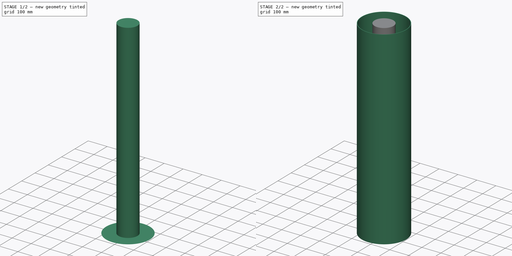
[diagram: build sequence overview — one tinted view per stage of 2, left to right]
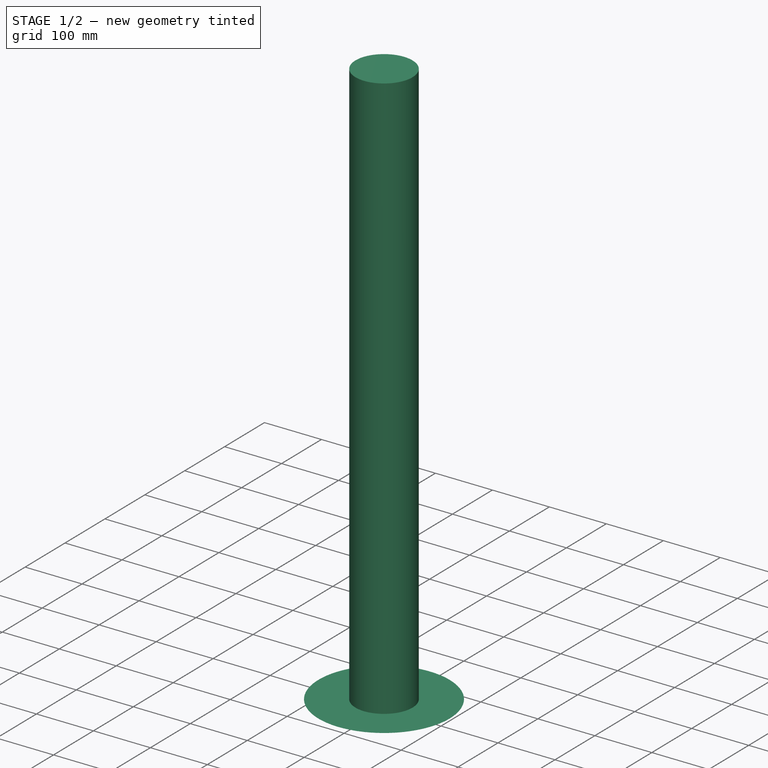
[diagram: stage 1 of 2 — iso view after this stage's code; geometry added in this stage tinted green]
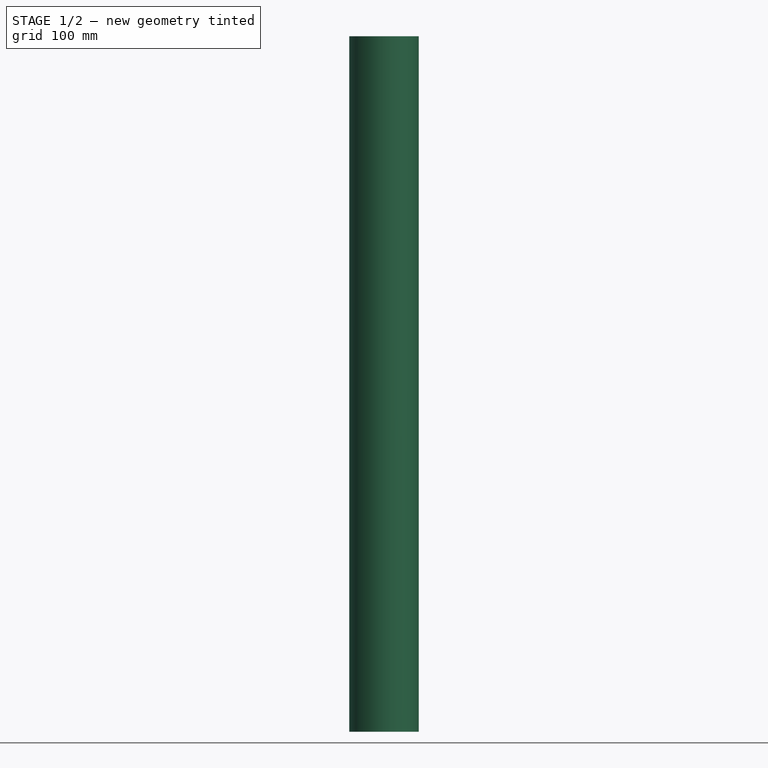
[diagram: stage 1 of 2 — front view after this stage's code; geometry added in this stage tinted green]
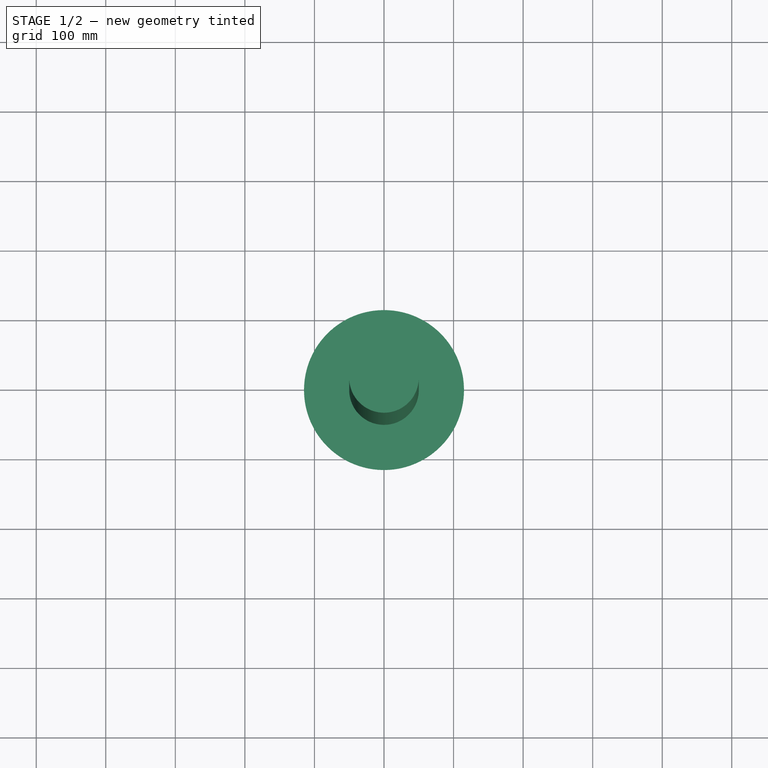
[diagram: stage 1 of 2 — top view after this stage's code; geometry added in this stage tinted green]
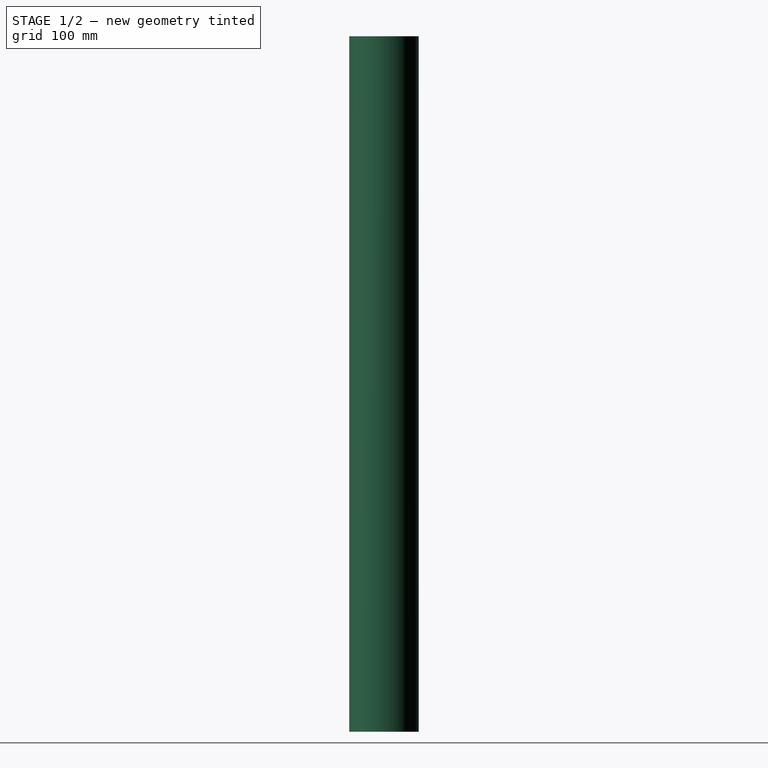
[diagram: stage 1 of 2 — right view after this stage's code; geometry added in this stage tinted green]
FCSTD DOCUMENT  (FreeCAD 0.18R16131 (Git))
Label: coax_1
License: All rights reserved
LicenseURL: http://en.wikipedia.org/wiki/All_rights_reserved
objects: Sketcher::SketchObject×13, Part::Extrusion×13
note: 26 computed .brp shape members not serialized (recipe doc carries the construction recipe); baked Part::Feature solids carry a one-line shape summary decoded from their .brp

FEATURE [Part::Extrusion] Extrude001  label="antenna"
  Base = -> Sketch001
  Dir = (0,0,1)
  DirMode = 2
  FaceMakerClass = Part::FaceMakerBullseye
  LengthFwd = 1000
  LengthRev = 0
  Solid = true
  Symmetric = false
FEATURE [Sketcher::SketchObject] Sketch002  label="sketch_excitationPort1"
  sketch-geometry (2):
    g0: Circle CenterX=0 CenterY=0 CenterZ=0 NormalX=0 NormalY=0 NormalZ=1 AngleXU=0 Radius=50
    g1: Circle CenterX=0 CenterY=0 CenterZ=0 NormalX=0 NormalY=0 NormalZ=1 AngleXU=0 Radius=115
  constraints (4):
    c: Coincident(g0,g-1)
    c: Coincident(g1,g0)
    c: Diameter(g0) = 100
    c: Diameter(g1) = 230
FEATURE [Part::Extrusion] Extrude002  label="excitationCoax"
  Base = -> Sketch002
  Dir = (0,0,1)
  DirMode = 2
  FaceMakerClass = Part::FaceMakerBullseye
  LengthFwd = 0.035
  LengthRev = 0
  Reversed = true
  Solid = true
  Symmetric = false
FEATURE [Sketcher::SketchObject] Sketch003  label="sketch_i1_A"
  Placement = pos=(0,0,247.5) rot=(0,0,1;0rad)
  sketch-geometry (7):
    g0: LineSegment StartX=-56.5 StartY=56.5 StartZ=0 EndX=56.5 EndY=56.5 EndZ=0
    g1: LineSegment StartX=56.5 StartY=56.5 StartZ=0 EndX=56.5 EndY=-56.5 EndZ=0
    g2: LineSegment StartX=56.5 StartY=-56.5 StartZ=0 EndX=-56.5 EndY=-56.5 EndZ=0
    g3: LineSegment StartX=-56.5 StartY=-56.5 StartZ=0 EndX=-56.5 EndY=56.5 EndZ=0
    g4: LineSegment StartX=-56.5 StartY=-56.5 StartZ=0 EndX=56.5 EndY=56.5 EndZ=0
    g5: LineSegment StartX=-56.5 StartY=56.5 StartZ=0 EndX=56.5 EndY=-56.5 EndZ=0
    g6: GeomPoint X=0 Y=0 Z=0
  constraints (17):
    c: Coincident(g0,g1)
    c: Coincident(g1,g2)
    c: Coincident(g2,g3)
    c: Coincident(g3,g0)
    c: Horizontal(g0)
    c: Horizontal(g2)
    c: Vertical(g1)
    c: Vertical(g3)
    c: Distance(g0) = 113
    c: Distance(g1) = 113
    c: Coincident(g4,g2)
    c: Coincident(g4,g0)
    c: Coincident(g5,g0)
    c: Coincident(g5,g1)
    c: PointOnObject(g6,g4)
    c: Coincident(g6,g-1)
    c: PointOnObject(g6,g5)
FEATURE [Sketcher::SketchObject] Sketch004  label="sketch_i1_B"
  Placement = pos=(0,0,252.5) rot=(0,0,1;0rad)
  sketch-geometry (7):
    g0: LineSegment StartX=-56.5 StartY=56.5 StartZ=0 EndX=56.5 EndY=56.5 EndZ=0
    g1: LineSegment StartX=56.5 StartY=56.5 StartZ=0 EndX=56.5 EndY=-56.5 EndZ=0
    g2: LineSegment StartX=56.5 StartY=-56.5 StartZ=0 EndX=-56.5 EndY=-56.5 EndZ=0
    g3: LineSegment StartX=-56.5 StartY=-56.5 StartZ=0 EndX=-56.5 EndY=56.5 EndZ=0
    g4: LineSegment StartX=-56.5 StartY=-56.5 StartZ=0 EndX=56.5 EndY=56.5 EndZ=0
    g5: LineSegment StartX=-56.5 StartY=56.5 StartZ=0 EndX=56.5 EndY=-56.5 EndZ=0
    g6: GeomPoint X=0 Y=0 Z=0
  constraints (17):
    c: Coincident(g0,g1)
    c: Coincident(g1,g2)
    c: Coincident(g2,g3)
    c: Coincident(g3,g0)
    c: Horizontal(g0)
    c: Horizontal(g2)
    c: Vertical(g1)
    c: Vertical(g3)
    c: Distance(g0) = 113
    c: Distance(g1) = 113
    c: Coincident(g4,g2)
    c: Coincident(g4,g0)
    c: Coincident(g5,g0)
    c: Coincident(g5,g1)
    c: PointOnObject(g6,g4)
    c: Coincident(g6,g-1)
    c: PointOnObject(g6,g5)
FEATURE [Sketcher::SketchObject] Sketch005  label="sketch_i2_B"
  Placement = pos=(0,0,752.5) rot=(0,0,1;0rad)
  sketch-geometry (7):
    g0: LineSegment StartX=-56.5 StartY=56.5 StartZ=0 EndX=56.5 EndY=56.5 EndZ=0
    g1: LineSegment StartX=56.5 StartY=56.5 StartZ=0 EndX=56.5 EndY=-56.5 EndZ=0
    g2: LineSegment StartX=56.5 StartY=-56.5 StartZ=0 EndX=-56.5 EndY=-56.5 EndZ=0
    g3: LineSegment StartX=-56.5 StartY=-56.5 StartZ=0 EndX=-56.5 EndY=56.5 EndZ=0
    g4: LineSegment StartX=-56.5 StartY=-56.5 StartZ=0 EndX=56.5 EndY=56.5 EndZ=0
    g5: LineSegment StartX=-56.5 StartY=56.5 StartZ=0 EndX=56.5 EndY=-56.5 EndZ=0
    g6: GeomPoint X=0 Y=0 Z=0
  constraints (17):
    c: Coincident(g0,g1)
    c: Coincident(g1,g2)
    c: Coincident(g2,g3)
    c: Coincident(g3,g0)
    c: Horizontal(g0)
    c: Horizontal(g2)
    c: Vertical(g1)
    c: Vertical(g3)
    c: Distance(g0) = 113
    c: Distance(g1) = 113
    c: Coincident(g4,g2)
    c: Coincident(g4,g0)
    c: Coincident(g5,g0)
    c: Coincident(g5,g1)
    c: PointOnObject(g6,g4)
    c: Coincident(g6,g-1)
    c: PointOnObject(g6,g5)
FEATURE [Sketcher::SketchObject] Sketch006  label="sketch_i2_A"
  Placement = pos=(0,0,747.5) rot=(0,0,1;0rad)
  sketch-geometry (7):
    g0: LineSegment StartX=-56.5 StartY=56.5 StartZ=0 EndX=56.5 EndY=56.5 EndZ=0
    g1: LineSegment StartX=56.5 StartY=56.5 StartZ=0 EndX=56.5 EndY=-56.5 EndZ=0
    g2: LineSegment StartX=56.5 StartY=-56.5 StartZ=0 EndX=-56.5 EndY=-56.5 EndZ=0
    g3: LineSegment StartX=-56.5 StartY=-56.5 StartZ=0 EndX=-56.5 EndY=56.5 EndZ=0
    g4: LineSegment StartX=-56.5 StartY=-56.5 StartZ=0 EndX=56.5 EndY=56.5 EndZ=0
    g5: LineSegment StartX=-56.5 StartY=56.5 StartZ=0 EndX=56.5 EndY=-56.5 EndZ=0
    g6: GeomPoint X=0 Y=0 Z=0
  constraints (17):
    c: Coincident(g0,g1)
    c: Coincident(g1,g2)
    c: Coincident(g2,g3)
    c: Coincident(g3,g0)
    c: Horizontal(g0)
    c: Horizontal(g2)
    c: Vertical(g1)
    c: Vertical(g3)
    c: Distance(g0) = 113
    c: Distance(g1) = 113
    c: Coincident(g4,g2)
    c: Coincident(g4,g0)
    c: Coincident(g5,g0)
    c: Coincident(g5,g1)
    c: PointOnObject(g6,g4)
    c: Coincident(g6,g-1)
    c: PointOnObject(g6,g5)
FEATURE [Part::Extrusion] Extrude003  label="currentProbe_i1_A"
  Base = -> Sketch003
  Dir = (0,0,1)
  DirMode = 2
  FaceMakerClass = Part::FaceMakerBullseye
  LengthFwd = 0
  LengthRev = 0
  Solid = false
  Symmetric = false
FEATURE [Part::Extrusion] Extrude004  label="currentProbe_i1_B"
  Base = -> Sketch004
  Dir = (0,0,1)
  DirMode = 2
  FaceMakerClass = Part::FaceMakerBullseye
  LengthFwd = 0
  LengthRev = 0
  Solid = false
  Symmetric = false
FEATURE [Part::Extrusion] Extrude005  label="currentProbe_i2_A"
  Base = -> Sketch006
  Dir = (0,0,1)
  DirMode = 2
  FaceMakerClass = Part::FaceMakerBullseye
  LengthFwd = 0
  LengthRev = 0
  Solid = false
  Symmetric = false
FEATURE [Part::Extrusion] Extrude006  label="currentProbe_i2_B"
  Base = -> Sketch005
  Dir = (0,0,1)
  DirMode = 2
  FaceMakerClass = Part::FaceMakerBullseye
  LengthFwd = 0
  LengthRev = 0
  Solid = false
  Symmetric = false
FEATURE [Sketcher::SketchObject] Sketch007  label="sketch_u2_A"
  Placement = pos=(0,0,747.7) rot=(0,0,1;0rad)
  sketch-geometry (1):
    g0: LineSegment StartX=50 StartY=0 StartZ=0 EndX=115 EndY=0 EndZ=0
  constraints (4):
    c: PointOnObject(g0,g-1)
    c: PointOnObject(g0,g-1)
    c: Distance(g-1,g0) = 50
    c: Distance(g-1,g0) = 115
FEATURE [Sketcher::SketchObject] Sketch008  label="sketch_u2_B"
  Placement = pos=(0,0,750) rot=(0,0,1;0rad)
  sketch-geometry (1):
    g0: LineSegment StartX=50 StartY=0 StartZ=0 EndX=115 EndY=0 EndZ=0
  constraints (4):
    c: PointOnObject(g0,g-1)
    c: PointOnObject(g0,g-1)
    c: Distance(g-1,g0) = 50
    c: Distance(g-1,g0) = 115
FEATURE [Sketcher::SketchObject] Sketch009  label="sketch_u2_C"
  Placement = pos=(0,0,752.5) rot=(0,0,1;0rad)
  sketch-geometry (1):
    g0: LineSegment StartX=50 StartY=0 StartZ=0 EndX=115 EndY=0 EndZ=0
  constraints (4):
    c: PointOnObject(g0,g-1)
    c: PointOnObject(g0,g-1)
    c: Distance(g-1,g0) = 50
    c: Distance(g-1,g0) = 115
FEATURE [Part::Extrusion] Extrude010  label="voltageProbe_u2_A"
  Base = -> Sketch007
  Dir = (0,0,1)
  DirMode = 2
  FaceMakerClass = Part::FaceMakerBullseye
  LengthFwd = 0
  LengthRev = 0
  Solid = false
  Symmetric = false
FEATURE [Part::Extrusion] Extrude011  label="voltageProbe_u2_C"
  Base = -> Sketch009
  Dir = (0,0,1)
  DirMode = 2
  FaceMakerClass = Part::FaceMakerBullseye
  LengthFwd = 0
  LengthRev = 0
  Solid = false
  Symmetric = false
FEATURE [Part::Extrusion] Extrude012  label="voltageProbe_u2_B"
  Base = -> Sketch008
  Dir = (0,0,1)
  DirMode = 2
  FaceMakerClass = Part::FaceMakerBullseye
  LengthFwd = 0
  LengthRev = 0
  Solid = false
  Symmetric = false
FEATURE [Sketcher::SketchObject] Sketch010  label="sketch_u1_A"
  Placement = pos=(0,0,247.5) rot=(0,0,1;0rad)
  sketch-geometry (1):
    g0: LineSegment StartX=50 StartY=0 StartZ=0 EndX=115 EndY=0 EndZ=0
  constraints (4):
    c: PointOnObject(g0,g-1)
    c: PointOnObject(g0,g-1)
    c: Distance(g-1,g0) = 50
    c: Distance(g-1,g0) = 115
FEATURE [Sketcher::SketchObject] Sketch011  label="sketch_u1_B"
  Placement = pos=(0,0,250) rot=(0,0,1;0rad)
  sketch-geometry (1):
    g0: LineSegment StartX=50 StartY=0 StartZ=0 EndX=115 EndY=0 EndZ=0
  constraints (4):
    c: PointOnObject(g0,g-1)
    c: PointOnObject(g0,g-1)
    c: Distance(g-1,g0) = 50
    c: Distance(g-1,g0) = 115
FEATURE [Sketcher::SketchObject] Sketch012  label="sketch_u1_C"
  Placement = pos=(0,0,252.5) rot=(0,0,1;0rad)
  sketch-geometry (1):
    g0: LineSegment StartX=50 StartY=0 StartZ=0 EndX=115 EndY=0 EndZ=0
  constraints (4):
    c: PointOnObject(g0,g-1)
    c: PointOnObject(g0,g-1)
    c: Distance(g-1,g0) = 50
    c: Distance(g-1,g0) = 115
FEATURE [Part::Extrusion] Extrude013  label="voltageProbe_u1_A"
  Base = -> Sketch010
  Dir = (0,0,1)
  DirMode = 2
  FaceMakerClass = Part::FaceMakerBullseye
  LengthFwd = 0
  LengthRev = 0
  Solid = false
  Symmetric = false
FEATURE [Part::Extrusion] Extrude014  label="voltageProbe_u1_B"
  Base = -> Sketch011
  Dir = (0,0,1)
  DirMode = 2
  FaceMakerClass = Part::FaceMakerBullseye
  LengthFwd = 0
  LengthRev = 0
  Solid = false
  Symmetric = false
FEATURE [Part::Extrusion] Extrude015  label="voltageProbe_u1_C"
  Base = -> Sketch012
  Dir = (0,0,1)
  DirMode = 2
  FaceMakerClass = Part::FaceMakerBullseye
  LengthFwd = 0
  LengthRev = 0
  Solid = false
  Symmetric = false
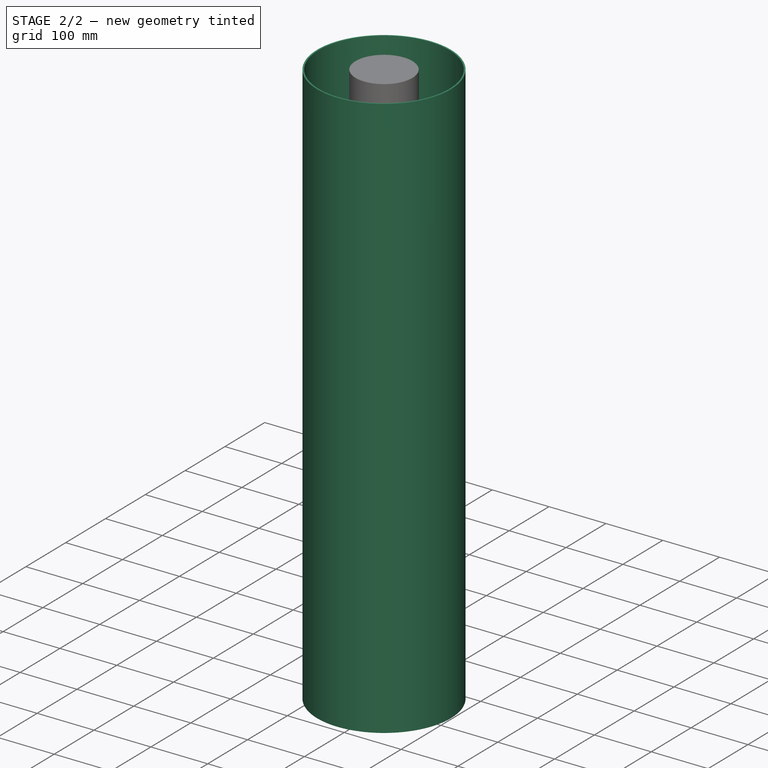
[diagram: stage 2 of 2 — iso view after this stage's code; geometry added in this stage tinted green]
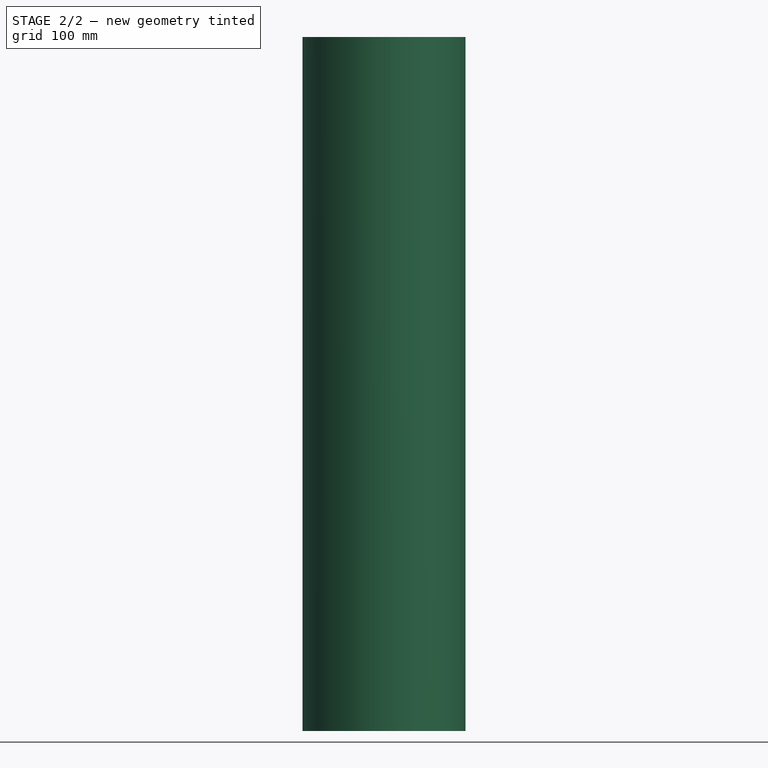
[diagram: stage 2 of 2 — front view after this stage's code; geometry added in this stage tinted green]
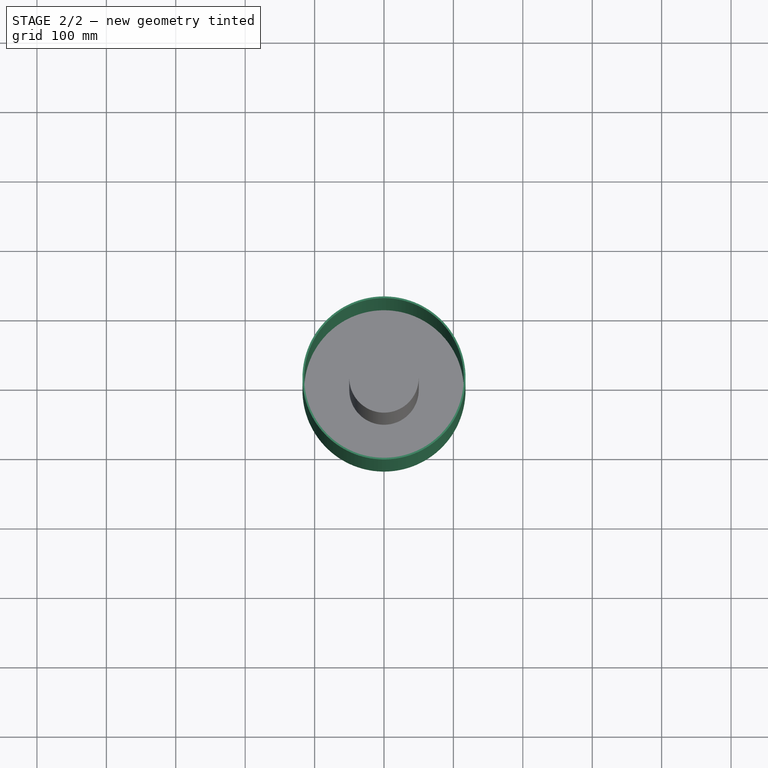
[diagram: stage 2 of 2 — top view after this stage's code; geometry added in this stage tinted green]
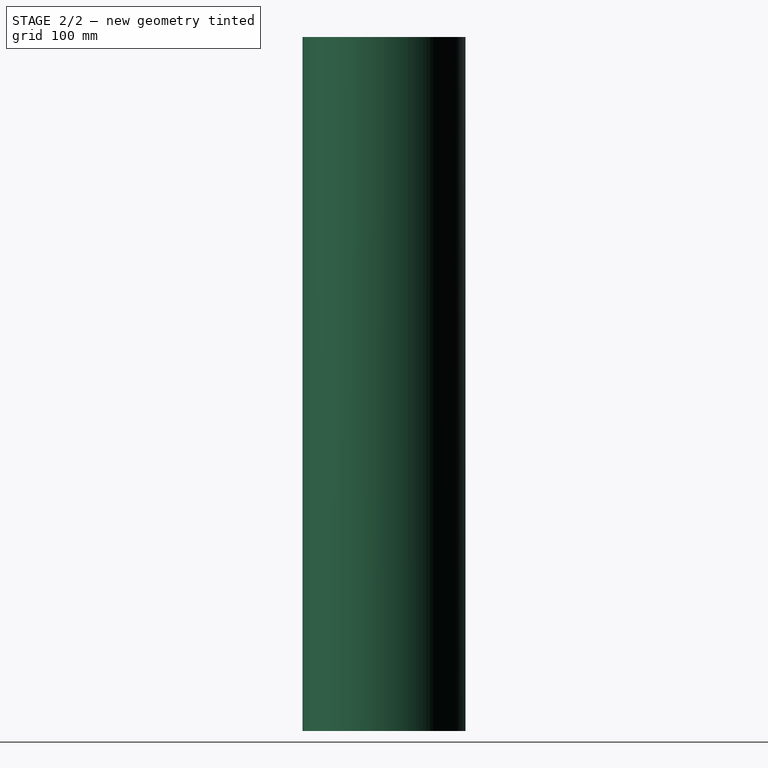
[diagram: stage 2 of 2 — right view after this stage's code; geometry added in this stage tinted green]
FEATURE [Sketcher::SketchObject] Sketch  label="sketch_outerCircle"
  sketch-geometry (2):
    g0: Circle CenterX=0 CenterY=0 CenterZ=0 NormalX=0 NormalY=0 NormalZ=1 AngleXU=0 Radius=115
    g1: Circle CenterX=0 CenterY=0 CenterZ=0 NormalX=0 NormalY=0 NormalZ=1 AngleXU=0 Radius=117.5
  constraints (4):
    c: Coincident(g0,g-1)
    c: Coincident(g1,g0)
    c: Diameter(g0) = 230
    c: Diameter(g1) = 235
FEATURE [Sketcher::SketchObject] Sketch001  label="sketch_innerCircle"
  sketch-geometry (1):
    g0: Circle CenterX=0 CenterY=0 CenterZ=0 NormalX=0 NormalY=0 NormalZ=1 AngleXU=0 Radius=50
  constraints (2):
    c: Coincident(g0,g-1)
    c: Diameter(g0) = 100
FEATURE [Part::Extrusion] Extrude  label="gnd"
  Base = -> Sketch
  Dir = (0,0,1)
  DirMode = 2
  FaceMakerClass = Part::FaceMakerBullseye
  LengthFwd = 1000
  LengthRev = 0
  Solid = true
  Symmetric = false
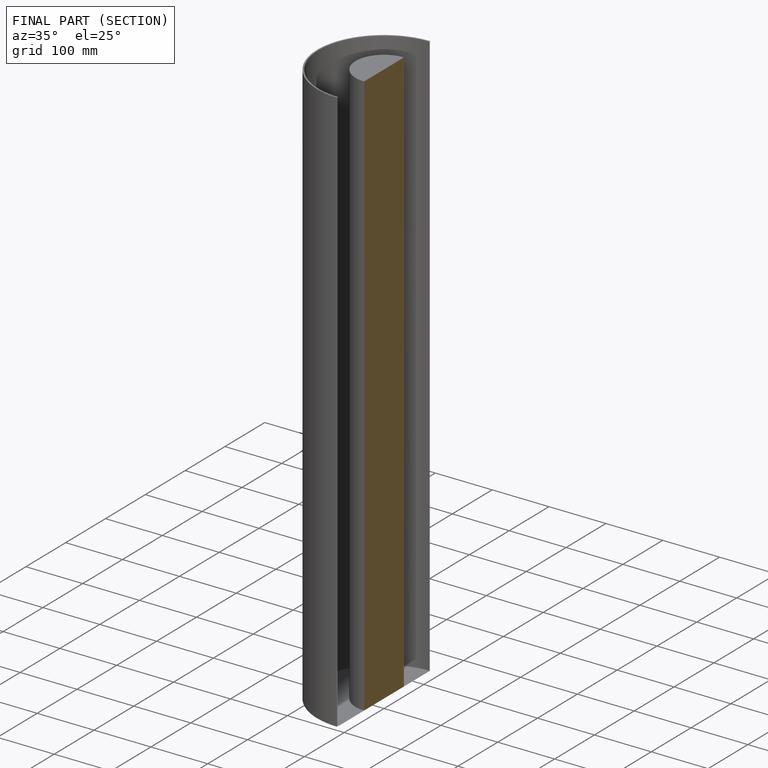
[diagram: finished part — half-section view (interior)]
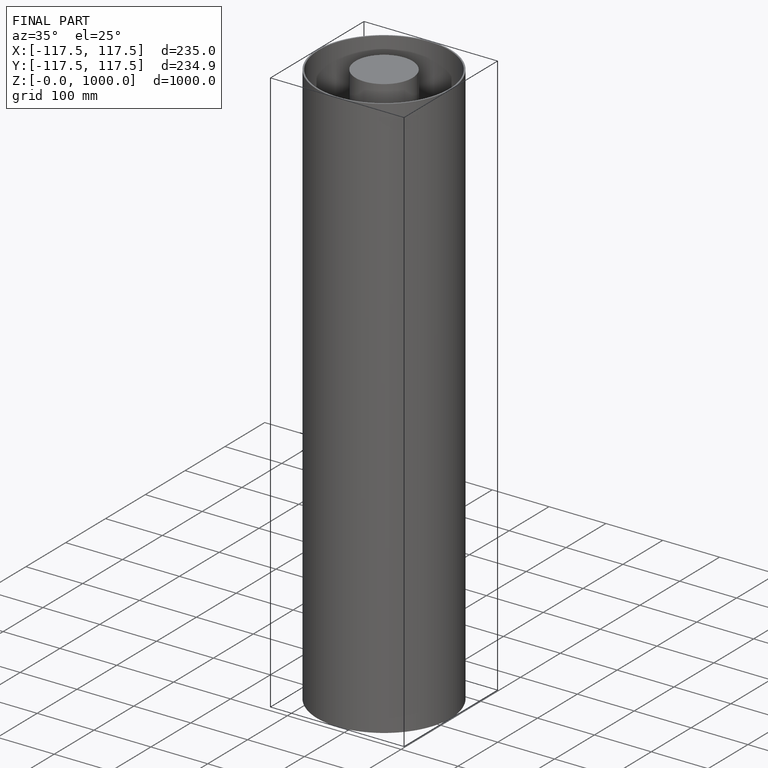
[diagram: finished part — iso view with bounding-box wireframe]
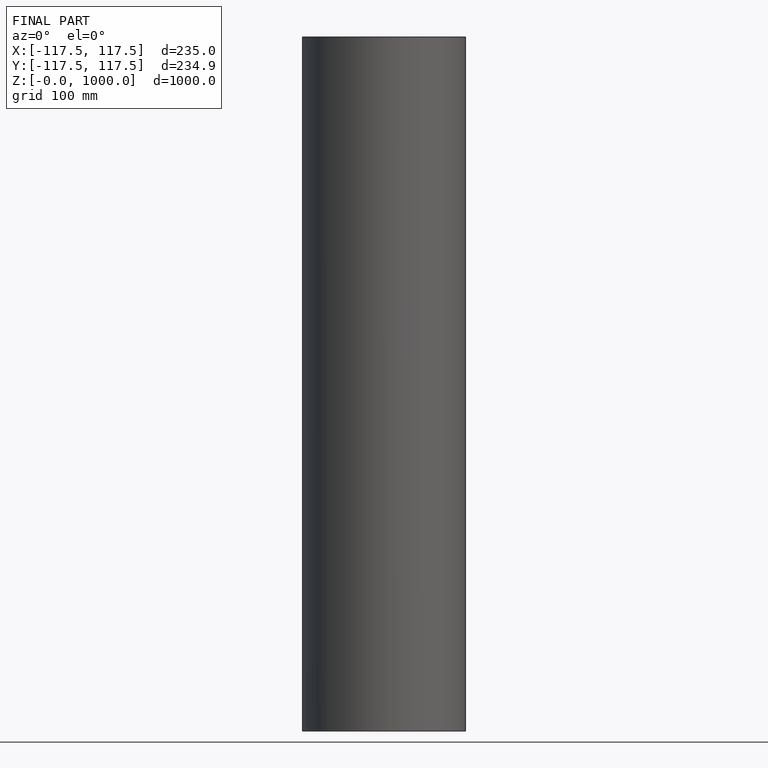
[diagram: finished part — front view with bounding-box wireframe]
